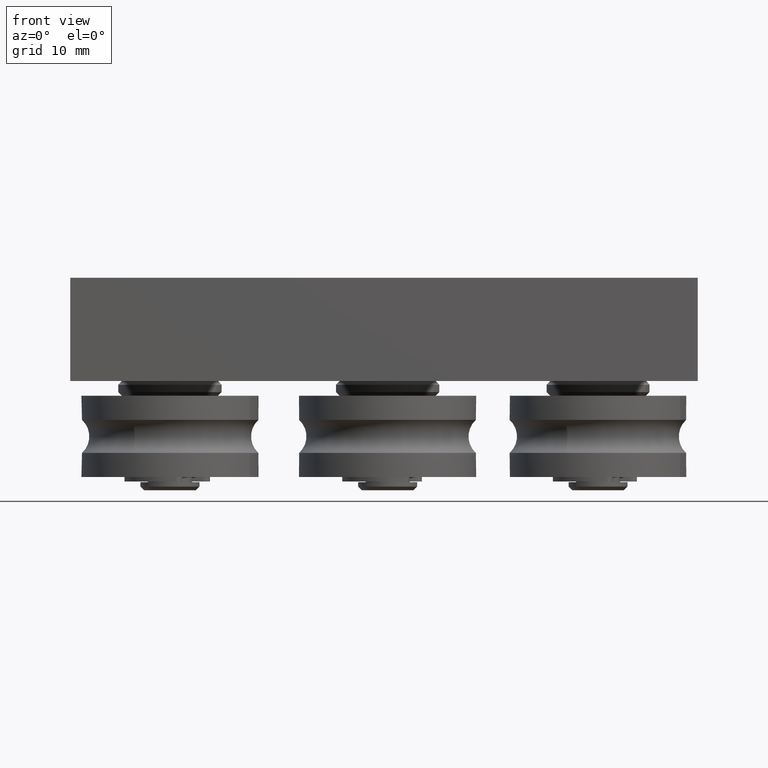
[diagram: clean part render]
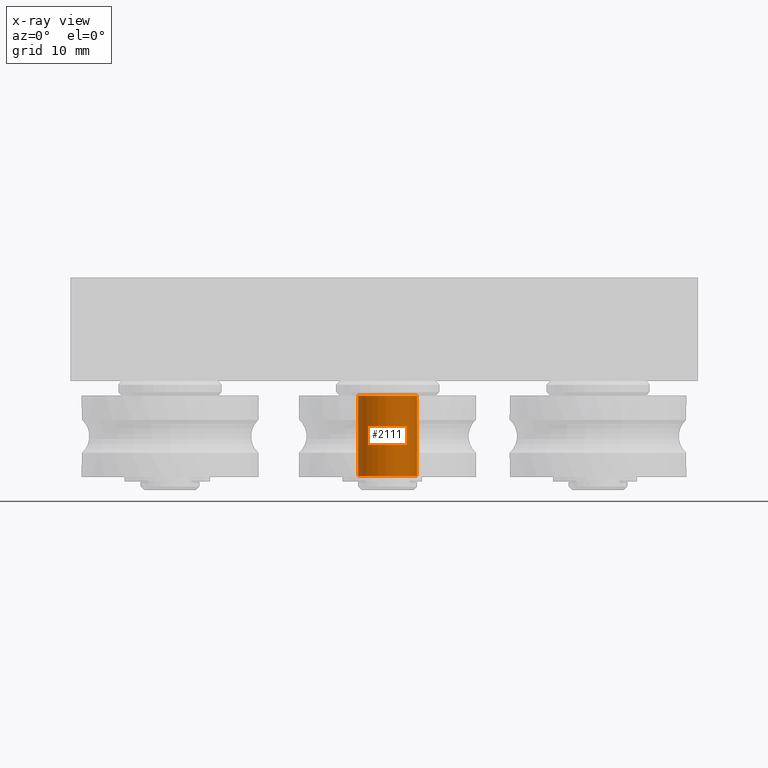
[diagram: x-ray — body ghosted, one internal face saturated and labeled with its STEP entity id]
A machine part, front view, then the same camera in x-ray: the body is ghosted and one INTERNAL B-rep face — a face not visible from any outside direction — is saturated and labeled: STEP entity #2111.
In plain terms, the highlighted cylindrical surface (bore or boss wall) has radius 4 mm, axis along (0, 0, -1).
Its self-contained STEP definition (entity closure, byte-faithful):
#255=CYLINDRICAL_SURFACE('',#2500,4.);
#330=FACE_OUTER_BOUND('',#487,.T.);
#487=EDGE_LOOP('',(#1650,#1651,#1652,#1653));
#647=LINE('',#3610,#783);
#783=VECTOR('',#2929,4.);
#901=CIRCLE('',#2490,4.);
#906=CIRCLE('',#2501,4.);
#1051=VERTEX_POINT('',#3589);
#1056=VERTEX_POINT('',#3608);
#1264=EDGE_CURVE('',#1051,#1051,#901,.T.);
#1272=EDGE_CURVE('',#1056,#1056,#906,.T.);
#1273=EDGE_CURVE('',#1056,#1051,#647,.T.);
#1650=ORIENTED_EDGE('',*,*,#1272,.F.);
#1651=ORIENTED_EDGE('',*,*,#1273,.T.);
#1652=ORIENTED_EDGE('',*,*,#1264,.T.);
#1653=ORIENTED_EDGE('',*,*,#1273,.F.);
#2111=ADVANCED_FACE('',(#330),#255,.T.);
#2490=AXIS2_PLACEMENT_3D('',#3590,#2902,#2903);
#2500=AXIS2_PLACEMENT_3D('',#3607,#2925,#2926);
#2501=AXIS2_PLACEMENT_3D('',#3609,#2927,#2928);
#2902=DIRECTION('center_axis',(1.,0.,0.));
#2903=DIRECTION('ref_axis',(0.,1.,0.));
#2925=DIRECTION('center_axis',(1.,0.,0.));
#2926=DIRECTION('ref_axis',(0.,1.,0.));
#2927=DIRECTION('center_axis',(1.,0.,0.));
#2928=DIRECTION('ref_axis',(0.,1.,0.));
#2929=DIRECTION('',(-1.,0.,0.));
#3589=CARTESIAN_POINT('',(2.,-4.,-4.89858719658941E-16));
#3590=CARTESIAN_POINT('Origin',(2.,0.,0.));
#3607=CARTESIAN_POINT('Origin',(7.45,0.,0.));
#3608=CARTESIAN_POINT('',(12.9,-4.,-4.89858719658941E-16));
#3609=CARTESIAN_POINT('Origin',(12.9,0.,0.));
#3610=CARTESIAN_POINT('',(7.45,-4.,-4.89858719658941E-16));